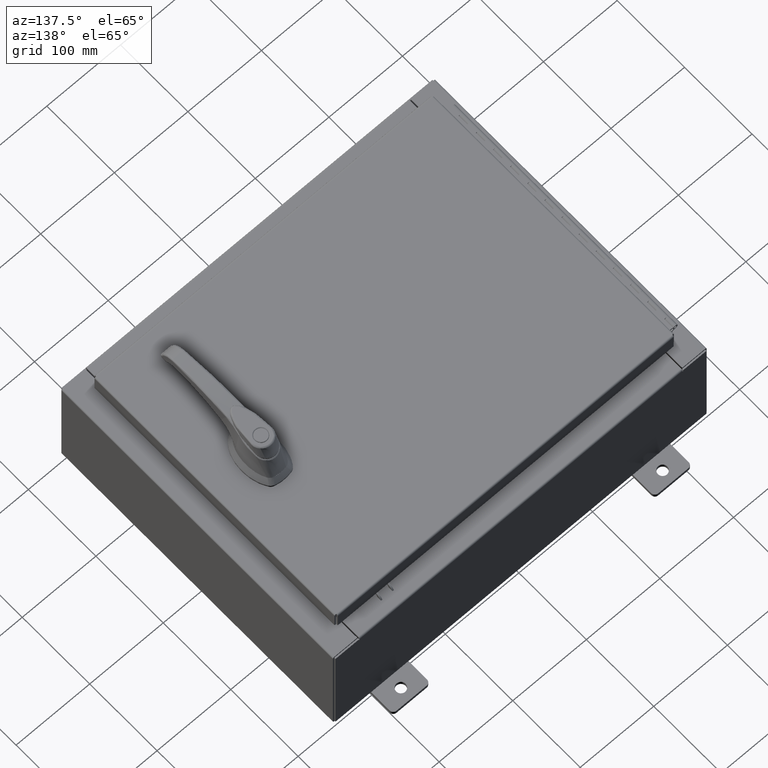
[diagram: clean part render]
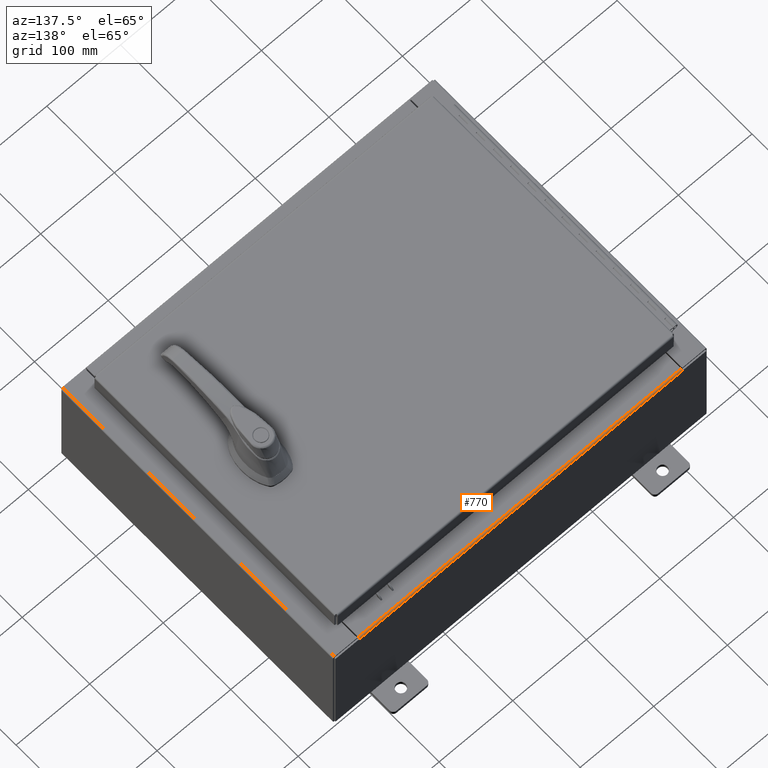
[diagram: same view with one face highlighted and labeled with its STEP entity id]
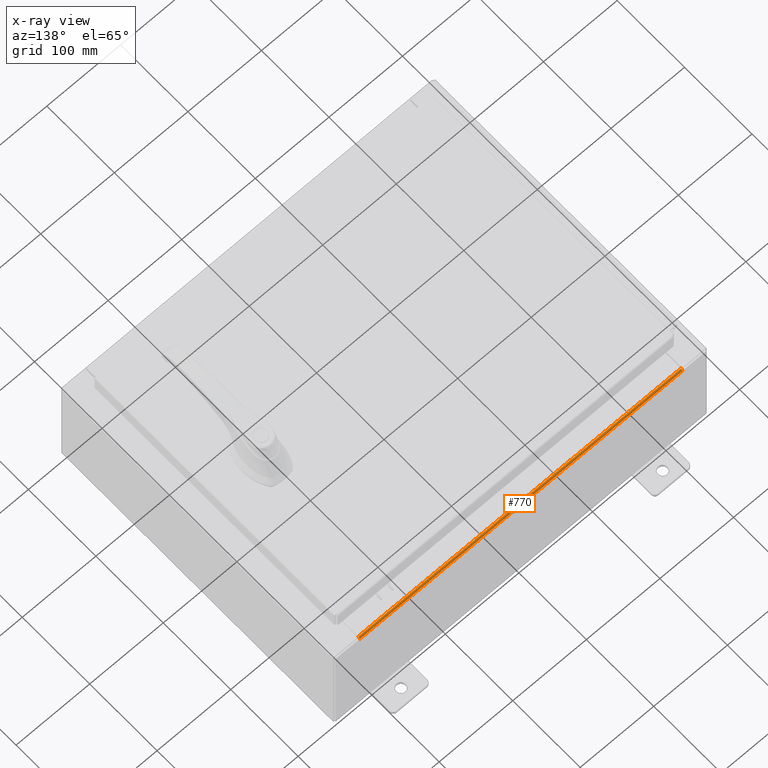
[diagram: x-ray of the same camera — body ghosted, the highlighted face saturated]
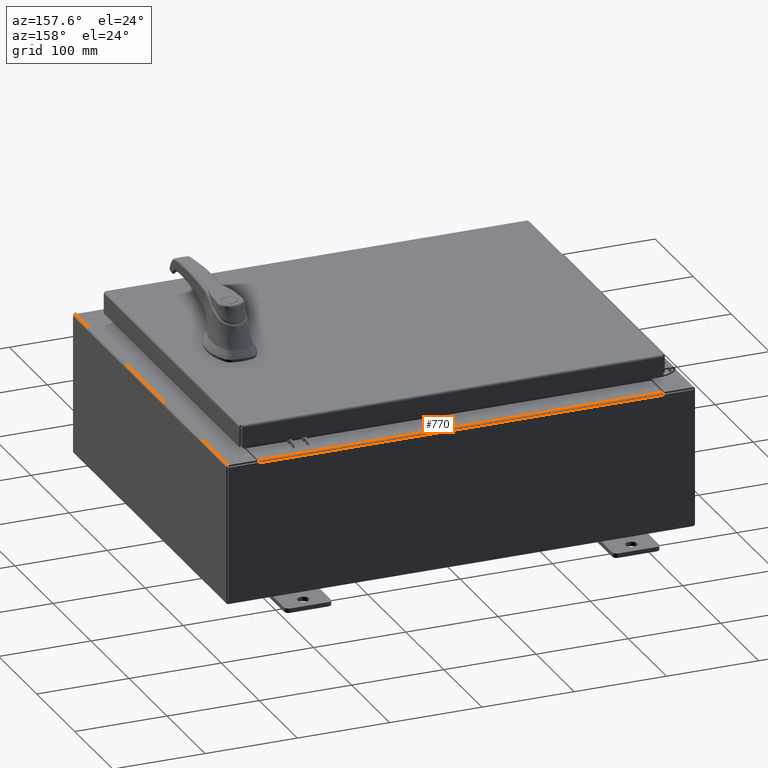
[diagram: same view with one face highlighted and labeled with its STEP entity id]
A machine part, auxiliary view. The second image highlights one B-rep face of the part: STEP entity #770.
The next image is the same camera in x-ray: the body ghosted, the highlighted face saturated — about 0% of this face is hidden behind the body in this view.
A second angle (auxiliary view) of the same face is appended — the face is thin or edge-on in the first view.
In plain terms, the highlighted cylindrical surface (edge-blend (fillet) strip) has radius 2.2276 mm, axis along (-1, -0, -0).
Its self-contained STEP definition (entity closure, byte-faithful):
#770 = ADVANCED_FACE ( 'NONE', ( #3646 ), #103361, .T. ) ;
#3646 = FACE_OUTER_BOUND ( 'NONE', #73231, .T. ) ;
#4821 = VERTEX_POINT ( 'NONE', #59893 ) ;
#14180 = EDGE_CURVE ( 'NONE', #83975, #25057, #20523, .T. ) ;
#16830 = DIRECTION ( 'NONE',  ( -1.000000000000000000, -0.0000000000000000000, -0.0000000000000000000 ) ) ;
#20523 = LINE ( 'NONE', #72487, #45158 ) ;
#24105 = CARTESIAN_POINT ( 'NONE',  ( 8.637200000000000000, -0.08770000000000000000, 2.912300000000000600 ) ) ;
#25057 = VERTEX_POINT ( 'NONE', #77303 ) ;
#30407 = CARTESIAN_POINT ( 'NONE',  ( 8.637200000000000000, -0.08769999999999965300, 3.000000000000000900 ) ) ;
#32410 = DIRECTION ( 'NONE',  ( 0.0000000000000000000, -1.752183006198567300E-015, 1.000000000000000000 ) ) ;
#35413 = CARTESIAN_POINT ( 'NONE',  ( -8.637200000000000000, 1.024442997624098700E-016, 2.912300000000000600 ) ) ;
#35829 = AXIS2_PLACEMENT_3D ( 'NONE', #66387, #16830, #74749 ) ;
#36133 = EDGE_CURVE ( 'NONE', #66444, #4821, #70082, .T. ) ;
#39803 = ORIENTED_EDGE ( 'NONE', *, *, #14180, .F. ) ;
#45082 = CIRCLE ( 'NONE', #35829, 0.08770000000000026400 ) ;
#45158 = VECTOR ( 'NONE', #83230, 39.37007874015748100 ) ;
#45391 = CIRCLE ( 'NONE', #100159, 0.08770000000000026400 ) ;
#45510 = VECTOR ( 'NONE', #101640, 39.37007874015748100 ) ;
#45792 = AXIS2_PLACEMENT_3D ( 'NONE', #58331, #75032, #74680 ) ;
#50491 = ORIENTED_EDGE ( 'NONE', *, *, #36133, .F. ) ;
#58331 = CARTESIAN_POINT ( 'NONE',  ( -8.637200000000000000, -0.08770000000000000000, 2.912300000000000600 ) ) ;
#59893 = CARTESIAN_POINT ( 'NONE',  ( 8.637200000000000000, 0.0000000000000000000, 2.912300000000000600 ) ) ;
#60005 = ORIENTED_EDGE ( 'NONE', *, *, #76495, .F. ) ;
#66387 = CARTESIAN_POINT ( 'NONE',  ( -8.637199999999996400, -0.08770000000000000000, 2.912300000000000600 ) ) ;
#66444 = VERTEX_POINT ( 'NONE', #68763 ) ;
#68763 = CARTESIAN_POINT ( 'NONE',  ( -8.637199999999996400, 1.024442997624098700E-016, 2.912300000000000600 ) ) ;
#70082 = LINE ( 'NONE', #35413, #45510 ) ;
#72487 = CARTESIAN_POINT ( 'NONE',  ( -2.773851121247453900E-018, -0.08770000000000000000, 3.000000000000001300 ) ) ;
#73231 = EDGE_LOOP ( 'NONE', ( #50491, #100396, #39803, #60005 ) ) ;
#74680 = DIRECTION ( 'NONE',  ( 0.0000000000000000000, 3.504366012397134600E-015, 1.000000000000000000 ) ) ;
#74749 = DIRECTION ( 'NONE',  ( 0.0000000000000000000, 0.0000000000000000000, 1.000000000000000000 ) ) ;
#75032 = DIRECTION ( 'NONE',  ( -1.000000000000000000, -0.0000000000000000000, -0.0000000000000000000 ) ) ;
#76495 = EDGE_CURVE ( 'NONE', #4821, #83975, #45391, .T. ) ;
#77303 = CARTESIAN_POINT ( 'NONE',  ( -8.637200000000000000, -0.08770000000000000000, 3.000000000000000900 ) ) ;
#79523 = EDGE_CURVE ( 'NONE', #25057, #66444, #45082, .T. ) ;
#81970 = DIRECTION ( 'NONE',  ( 1.000000000000000000, 0.0000000000000000000, 0.0000000000000000000 ) ) ;
#83230 = DIRECTION ( 'NONE',  ( -1.000000000000000000, 3.162886113166609200E-017, -1.128005754888089100E-031 ) ) ;
#83975 = VERTEX_POINT ( 'NONE', #30407 ) ;
#100159 = AXIS2_PLACEMENT_3D ( 'NONE', #24105, #81970, #32410 ) ;
#100396 = ORIENTED_EDGE ( 'NONE', *, *, #79523, .F. ) ;
#101640 = DIRECTION ( 'NONE',  ( 1.000000000000000000, 0.0000000000000000000, 0.0000000000000000000 ) ) ;
#103361 = CYLINDRICAL_SURFACE ( 'NONE', #45792, 0.08770000000000026400 ) ;